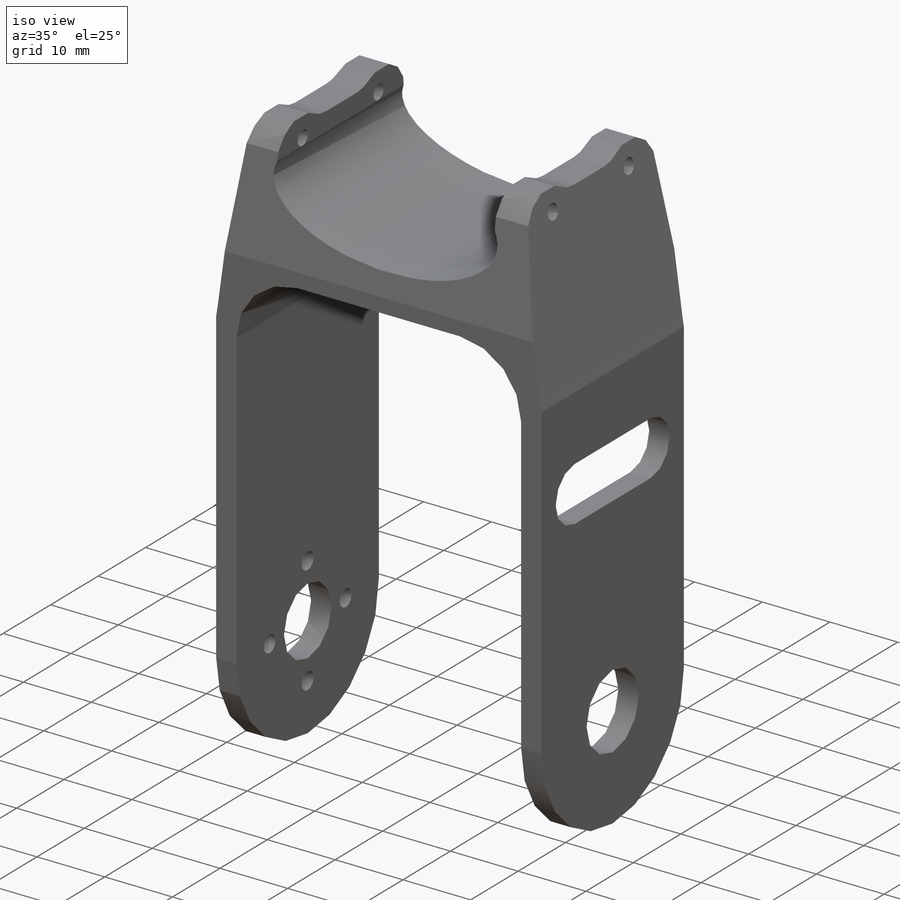
[diagram: iso view]
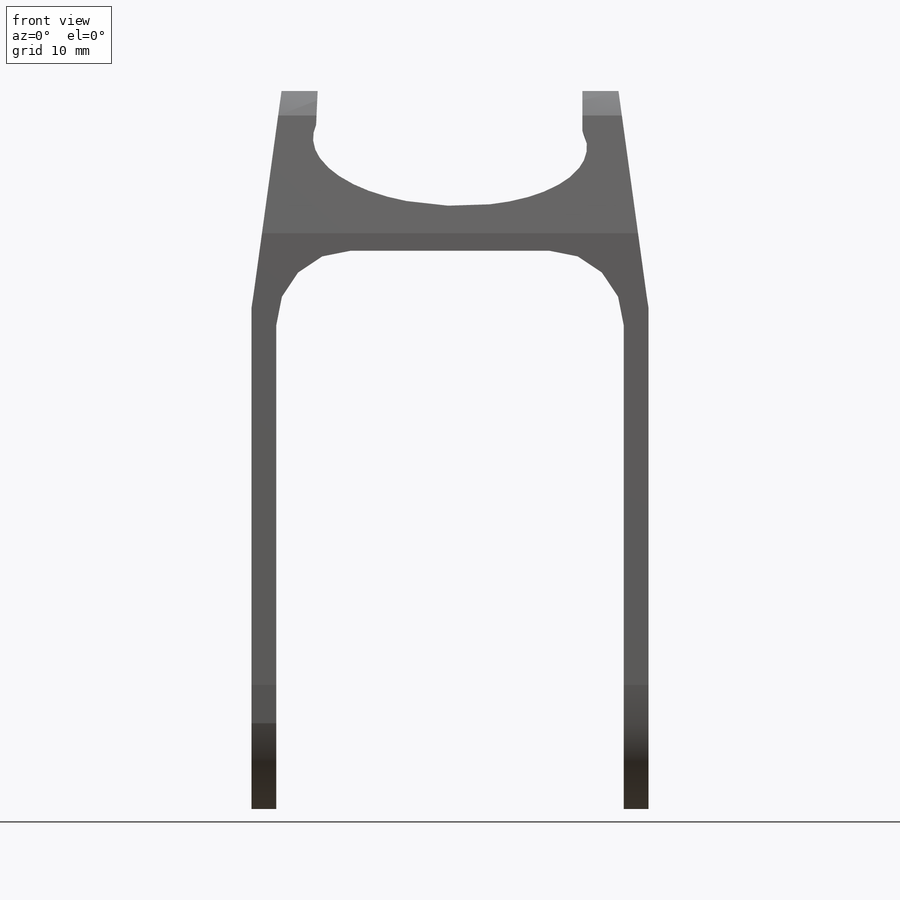
[diagram: front view]
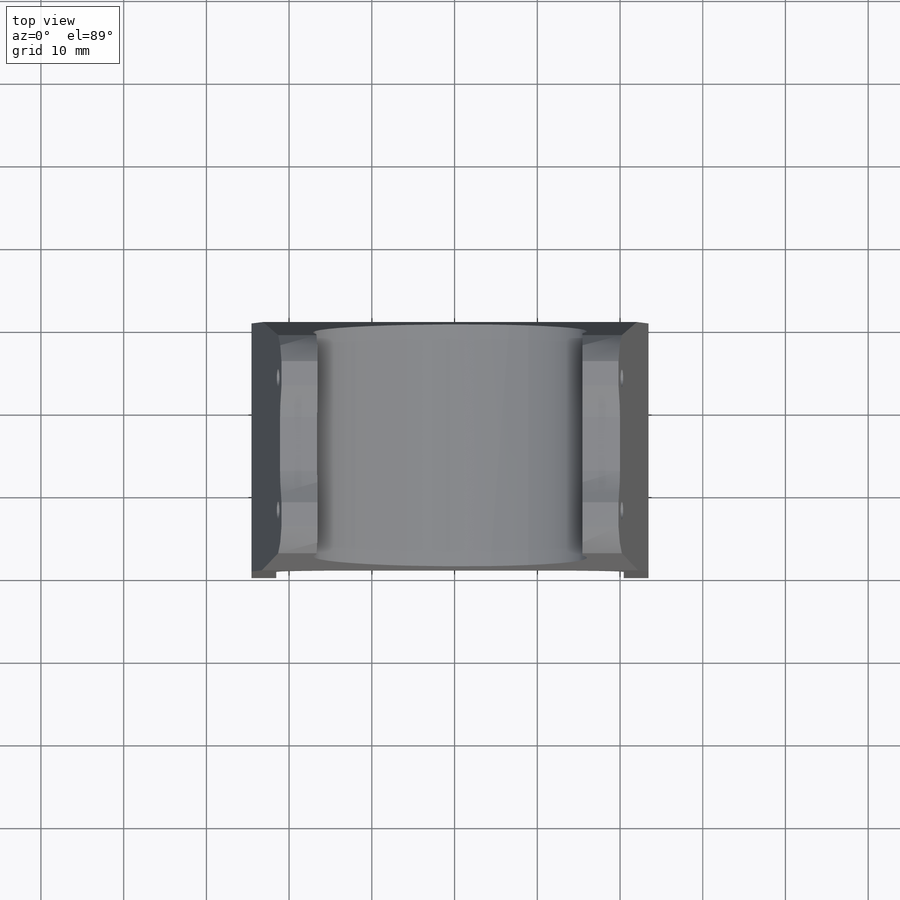
[diagram: top view]
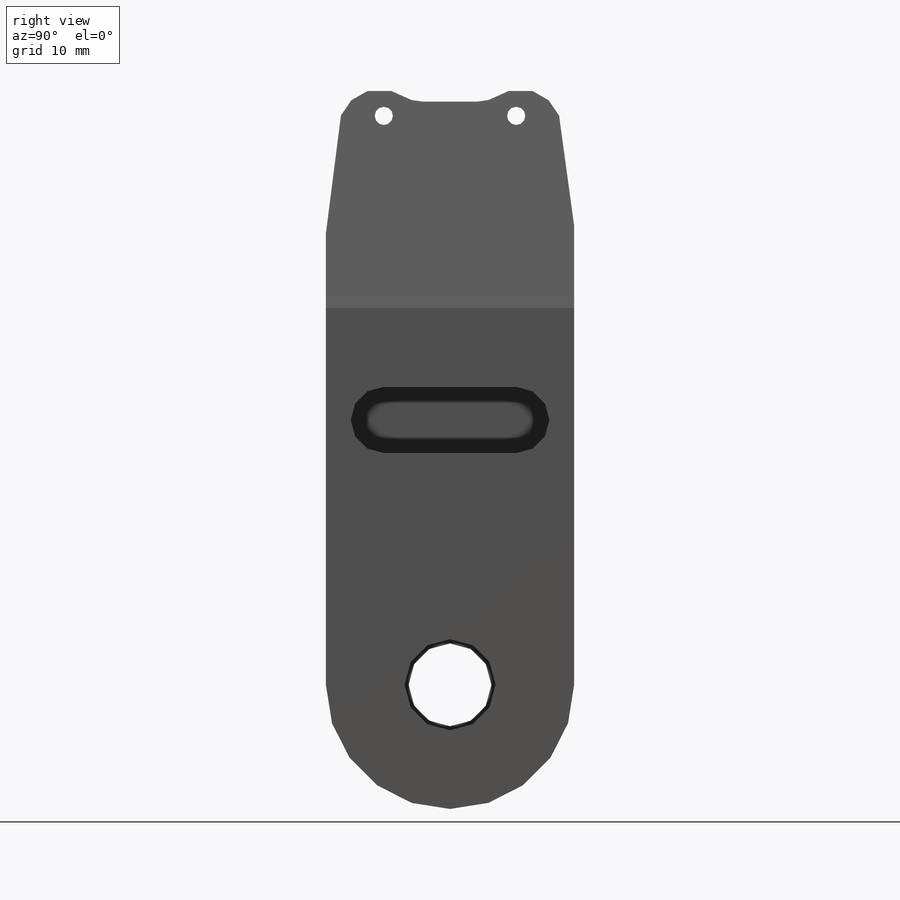
[diagram: right view]
SOLIDWORKS PART (.sldprt)
format: sldprt  version: not decoded by parser v0  size: 495,104 bytes
history: native  units: mm
features: sketch x6, cut_extrude x5, plane x3, material x1, extrude x1 (+10 scaffold rows collapsed)
feature tree (26):
  scaffold x10  (default folders/planes/origin — collapsed)
  material  "Материал <не указан>"
  plane  "Спереди"
  plane  "Сверху"
  plane  "Справа"
  sketch  "Эскиз1"  dims[c1.D2=9.0mm c1.D3=5.0mm c1.D5=5.0mm c1.D10=5.0mm c1.D27=5.0mm c1.D1=~42.54566mm c1.D4=~20.975885mm c2.D1=~62.062054mm c2.D4=~34.720794mm c2.D5=21.0mm c2.D6=24.0mm c2.D7=~62.293921mm c2.D8=24.0mm c3.D8=90.0deg c4.D8=~9.156332mm c4.D9=~8.684781mm c4.D10=~6.176402mm c5.D9=~8.684781mm c5.D10=~6.176402mm c5.D11=3.0mm c5.D12=~5.745668mm c5.D13=~7.690963mm c5.D14=~3.877735mm c5.D15=~8.671969mm c5.D16=~8.734459mm c6.D14=~8.734459mm c6.D16=~0.552906mm c6.D17=~52.36689mm c6.D18=~24.318697mm c6.D19=~21.861669mm c7.D18=~23.765791mm c7.D19=~21.308764mm c7.D20=~21.587948mm c7.D21=~20.919057mm c7.D22=~18.992558mm c7.D23=~19.629929mm c7.D24=~1.872113mm c8.D24=~4.289981deg c9.D24=~19.006567mm c9.D25=~19.747909mm c9.D26=~32.298294mm c9.D27=~32.598873mm c9.D28=~37.766204mm c9.D29=~37.165007mm c10.D28=~37.766204mm c10.D29=~5.46059mm c10.D30=~91.782848mm c10.D4=~91.782848mm c11.D30=~7.804355mm c11.D31=~8.53013mm c11.D4=~81.782848mm c11.D7=~35.047358mm c12.D7=~187.827657deg c12.D21=~16.253427mm c13.D21=97.83deg c13.D9=~18.21168mm c13.D10=~15.992558mm c13.D11=5.0mm c13.D12=~15.338662mm c13.D13=~34.415958mm c13.D14=~15.338662mm c14.D14=~7.778875deg c15.D14=~18.087932mm c15.D12=~4.853042mm c16.D14=~16.244522mm c16.D15=~17.942665mm c16.D19=24.0mm c16.D4=~14.980513mm c17.D4=~7.479776deg c17.D10=~86.782848mm c18.D4=~4.896676mm c19.D4=0.0deg c20.D4=16.0mm c20.D9=16.0mm c20.D14=~6.244522mm c21.D4=16.0mm c21.D9=~4.290424mm c21.D11=~4.904642mm c22.D11=~8.143607deg c22.D9=~4.814843mm c23.D9=90.0deg c24.D9=~4.814843mm c25.D9=~0.17481deg c26.D9=~4.814843mm c27.D9=90.0deg c28.D9=8.0mm c28.D10=~57.180798deg]
  extrude  "Бобышка-Вытянуть1"  Depth=30mm
  sketch  "Эскиз2"  dims[c1.D3=~30.192466mm c1.D5=5.0mm c1.D6=10.0mm c2.D5=5.0mm c2.D6=5.0mm c2.D1=3.0mm c2.D2=87.0mm c2.D4=30.0mm c3.D5=~3.429286mm c3.D7=1.5mm c3.D8=~0.000991mm c3.D1=25.0mm c4.D1=7.27deg c4.D3=~25.179357mm c5.D3=~6.842773deg c5.D4=20.0mm c5.D8=20.0mm c5.D9=~21.134491mm c5.D10=~19.749589mm c5.D11=~19.844677mm c6.D10=~20.018093mm c6.D4=20.5mm c6.D9=~6.831363mm c6.D3=~19.999994mm c6.D8=~6.981661mm c7.D9=~15.463489mm c8.D9=~7.273511deg c8.D10=~66.819029mm c8.D11=6.98mm c9.D9=~19.999994mm c9.D3=20.5mm c10.D9=~26.369648mm c10.D11=66.82mm c10.D12=17.0mm]
  sketch  "Эскиз3"  dims[c1.D1=2.2mm c1.D2=2.2mm c1.D3=2.2mm c1.D5=30.0mm c1.D6=10.0mm c2.D1=8.0mm c2.D4=~31.415958mm c2.D6=30.0mm]
  cut_extrude  "Вырез-Вытянуть5"  Depth=56mm
  cut_extrude  "Вырез-Вытянуть12"  Depth=51mm
  cut_extrude  "Вырез-Вытянуть7"  [1 undecoded]
  sketch  "Эскиз3<4>"  dims[D1=56.0mm]
  sketch  "Эскиз5"  dims[c1.D1=11.0mm c1.D4=4.0mm c2.D1=~15.178746mm c2.D2=28.0mm c2.D3=8.0mm c2.D4=8.0mm]
  sketch  "Эскиз6"  dims[c1.D1=2.5mm c1.D2=16.0mm c1.D3=2.5mm c1.D4=2.5mm c1.D5=2.5mm c2.D1=30.0mm]
  cut_extrude  "Вырез-Вытянуть9"  Depth=22mm
  cut_extrude  "Вырез-Вытянуть13"  Depth=10mm
decode coverage: 11 of 12 modeling features carry decoded parameters
note: ~ marks probable driven/reference dimensions
note: 1 parameter value undecoded
note: suppression state not decoded; provenance and decode notes live in map.json
